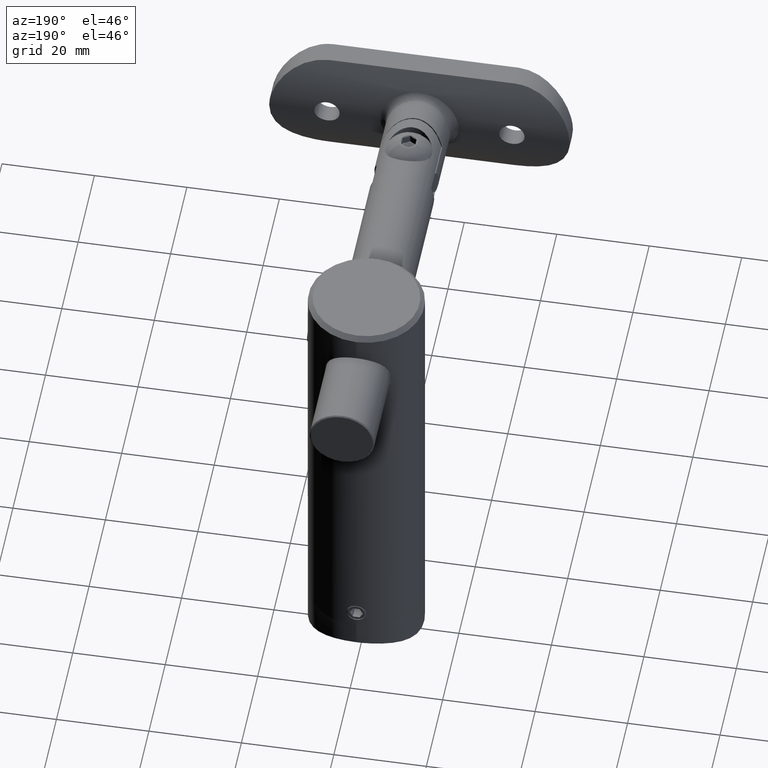
[diagram: clean part render]
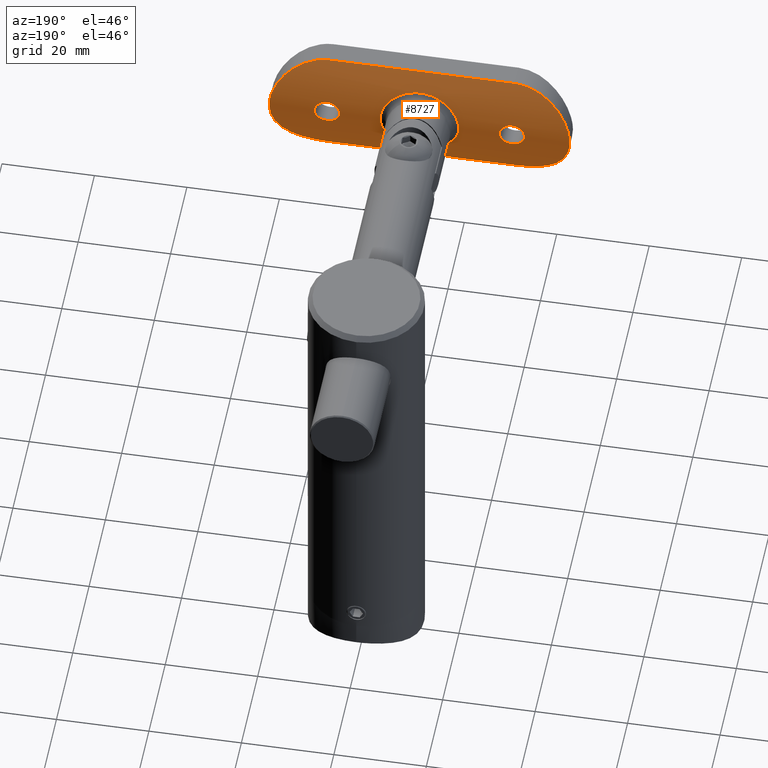
[diagram: same view with one face highlighted and labeled with its STEP entity id]
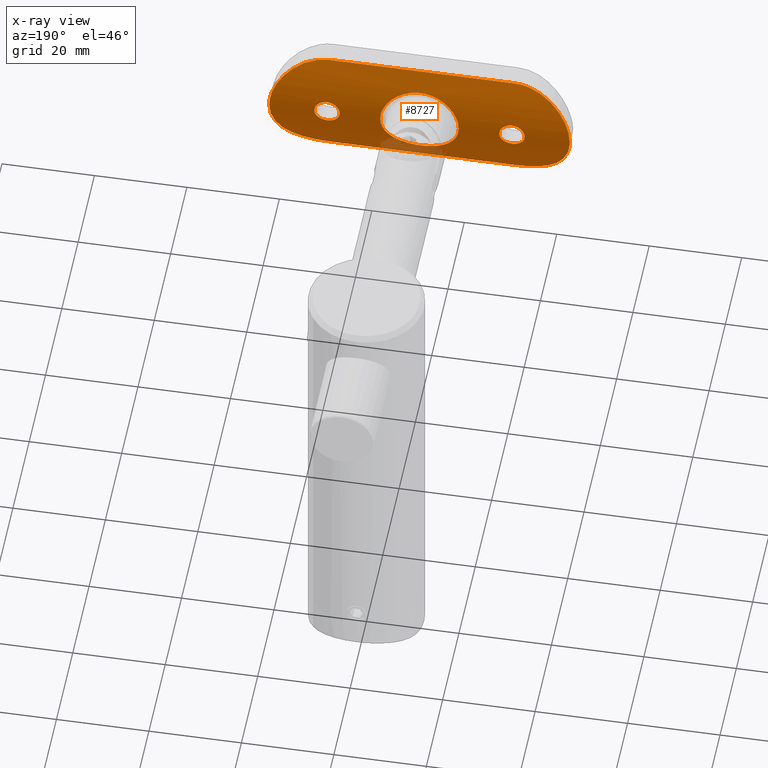
[diagram: x-ray of the same camera — body ghosted, the highlighted face saturated]
A machine part, auxiliary view. The second image highlights one B-rep face of the part: STEP entity #8727.
The next image is the same camera in x-ray: the body ghosted, the highlighted face saturated — about 3% of this face is hidden behind the body in this view.
In plain terms, the highlighted cylindrical surface (partial cylindrical patch) has radius 25.2 mm, axis along (1, -0, -0).
Its self-contained STEP definition (entity closure, byte-faithful):
#6 = CARTESIAN_POINT ( 'NONE',  ( -1.667268011024898078, 0.04195479554921971443, -32.41603179174911276 ) ) ;
#141 = CARTESIAN_POINT ( 'NONE',  ( 0.000000000000000000, 0.000000000000000000, -32.50000000000000000 ) ) ;
#160 = CARTESIAN_POINT ( 'NONE',  ( -7.317168829571952138, 1.085487654854808470, 3.495793623221181257 ) ) ;
#252 = CARTESIAN_POINT ( 'NONE',  ( 11.21365936985682232, 2.629676505859719793, 25.58293283478850455 ) ) ;
#304 = CARTESIAN_POINT ( 'NONE',  ( -3.706125848579806981, 0.2691211238552235208, -7.559892060029603122 ) ) ;
#309 = CARTESIAN_POINT ( 'NONE',  ( 2.732147407359613034, 0.1485206058410667995, 20.36086701383229425 ) ) ;
#370 = CARTESIAN_POINT ( 'NONE',  ( 7.749760127276230648, 1.221104493835866389, -2.214306671828311313 ) ) ;
#376 = CARTESIAN_POINT ( 'NONE',  ( -2.201255951346376971, 0.09498592681639476953, -8.178813999668568258 ) ) ;
#380 = CARTESIAN_POINT ( 'NONE',  ( 2.661862787343812098, 0.1409550103587203784, 20.71368127239569290 ) ) ;
#439 = CARTESIAN_POINT ( 'NONE',  ( 6.077169719930130221, 0.7408805853093711757, -5.576197931323946477 ) ) ;
#445 = CARTESIAN_POINT ( 'NONE',  ( -6.153664817988904190, 0.7601076573616449839, -5.481094006673680852 ) ) ;
#520 = CARTESIAN_POINT ( 'NONE',  ( 0.8870457649144875001, 0.01506562019405573161, 17.39075877949505156 ) ) ;
#599 = CARTESIAN_POINT ( 'NONE',  ( 2.886391478844329672, 0.1625181075792131447, 32.16925023365995884 ) ) ;
#615 = CARTESIAN_POINT ( 'NONE',  ( -12.49999999999999645, 3.318729470161013495, 32.50000000000006395 ) ) ;
#640 = FACE_OUTER_BOUND ( 'NONE', #14999, .T. ) ;
#671 = CARTESIAN_POINT ( 'NONE',  ( 1.667268011024896079, 0.04195479554921899279, 32.41603179174911276 ) ) ;
#688 = CARTESIAN_POINT ( 'NONE',  ( -1.819241778286838196, 0.06543225118884780922, 17.92997955775818397 ) ) ;
#725 = B_SPLINE_CURVE_WITH_KNOTS ( 'NONE', 3,
 ( #18077, #8356, #13281, #19497, #16454, #6737, #19709, #8433, #10013, #19781, #11709, #3629, #16247, #6523, #17870, #9805, #11425, #1661, #13078, #3326, #14686, #16316, #8226, #9867, #18351, #13554, #370, #10292, #19920, #11920, #19988, #11846, #439, #10151, #16874, #3903, #13626, #5454, #2315, #15167, #3762, #11780, #5380, #6946, #19856, #10221 ),
 .UNSPECIFIED., .F., .F.,
 ( 4, 2, 2, 2, 2, 2, 2, 2, 2, 2, 2, 2, 2, 2, 2, 2, 2, 2, 2, 2, 2, 2, 4 ),
 ( 0.02646108664101859756, 0.02728605130729167341, 0.02811101597356474927, 0.02976094530611090097, 0.03058590997238397682, 0.03141087463865705615, 0.03306080397120320785, 0.03471073330374935956, 0.03553569797002243541, 0.03636066263629551126, 0.03801059196884166297, 0.03966052130138780774, 0.04131045063393395944, 0.04213541530020703529, 0.04296037996648011115, 0.04461030929902626285, 0.04626023863157241456, 0.04708520329784549041, 0.04791016796411856626, 0.04956009729666471103, 0.05038506196293778688, 0.05121002662921086274, 0.05285995596175701444 ),
 .UNSPECIFIED. ) ;
#838 = CARTESIAN_POINT ( 'NONE',  ( 0.000000000000000000, 0.000000000000000000, -22.75000000000000000 ) ) ;
#975 = CARTESIAN_POINT ( 'NONE',  ( -2.662740999674293896, 0.1410487502677224281, 19.28976189785317175 ) ) ;
#980 = CARTESIAN_POINT ( 'NONE',  ( 2.750065284371435048, 0.1505061740554802518, -19.82148950650028851 ) ) ;
#984 = CARTESIAN_POINT ( 'NONE',  ( -11.68341459577139929, 2.871341540761538358, 24.46233648995672638 ) ) ;
#1001 = CARTESIAN_POINT ( 'NONE',  ( 0.000000000000000000, 0.000000000000000000, 17.25000000000000000 ) ) ;
#1050 = CARTESIAN_POINT ( 'NONE',  ( -2.608673552859927636, 0.1352907402618860333, -19.11130013583631282 ) ) ;
#1058 = CARTESIAN_POINT ( 'NONE',  ( -12.41600094213972305, 3.270152093552304962, 21.66693629175976099 ) ) ;
#1120 = CARTESIAN_POINT ( 'NONE',  ( 0.1795455977072645815, -1.311983449217973235E-15, -17.25000000000000355 ) ) ;
#1196 = CARTESIAN_POINT ( 'NONE',  ( -2.472126326106448335, 0.1214555880474237487, -21.21802285107709807 ) ) ;
#1201 = CARTESIAN_POINT ( 'NONE',  ( -8.266035766619465264, 1.392015620549698296, 29.38537545976074483 ) ) ;
#1270 = CARTESIAN_POINT ( 'NONE',  ( -4.070717388981838880, 0.3277296730789911461, 31.82587335543209761 ) ) ;
#1272 = CARTESIAN_POINT ( 'NONE',  ( 2.877492456091673922, 0.1615283928029649652, -32.17128298990891722 ) ) ;
#1337 = CARTESIAN_POINT ( 'NONE',  ( 7.316861939614359933, 1.083062932609342388, -30.14291416132809687 ) ) ;
#1401 = CARTESIAN_POINT ( 'NONE',  ( 4.070717388981838880, 0.3277296730789912571, -31.82587335543210472 ) ) ;
#1570 = CARTESIAN_POINT ( 'NONE',  ( 12.49999999999999645, 3.318729470161013495, 32.50000000000000000 ) ) ;
#1607 = ORIENTED_EDGE ( 'NONE', *, *, #2453, .F. ) ;
#1652 = CARTESIAN_POINT ( 'NONE',  ( -12.17172894015757656, 3.134241449003878799, -22.87552147047213680 ) ) ;
#1661 = CARTESIAN_POINT ( 'NONE',  ( 7.257040857804982537, 1.067233475373374763, 3.633718849123310335 ) ) ;
#1668 = B_SPLINE_CURVE_WITH_KNOTS ( 'NONE', 3,
 ( #19790, #16809, #10094, #11789, #520, #7094, #10371, #3713, #12006, #8445, #2043, #11929, #20066, #13497, #13429, #13363, #6957, #19866, #309, #380, #15109, #3639, #15176, #18152, #14969, #8650, #5251, #2180, #11723, #18291, #15037, #16671, #10161, #8586 ),
 .UNSPECIFIED., .F., .F.,
 ( 4, 2, 2, 2, 2, 2, 2, 2, 2, 2, 2, 2, 2, 2, 2, 2, 4 ),
 ( 0.000000000000000000, 0.0005377598190094447488, 0.001075519638018889498, 0.001613279457028334030, 0.002151039276037778995, 0.002688799095047224395, 0.003226558914056668927, 0.003764318733066114326, 0.004302078552075559725, 0.004839838371085004691, 0.005377598190094449657, 0.005915358009103894622, 0.006453117828113337853, 0.006990877647122782819, 0.007528637466132227785, 0.008066397285141673618, 0.008604157104151117716 ),
 .UNSPECIFIED. ) ;
#1733 = CARTESIAN_POINT ( 'NONE',  ( 0.000000000000000000, 0.000000000000000000, -32.50000000000000000 ) ) ;
#1744 = CARTESIAN_POINT ( 'NONE',  ( 12.50000000000000355, 3.318729470161013495, -20.00000000000000355 ) ) ;
#1814 = CARTESIAN_POINT ( 'NONE',  ( -6.396290159362872707, 0.8246844479477491996, 5.137882799507456966 ) ) ;
#1856 = DIRECTION ( 'NONE',  ( 0.000000000000000000, 0.000000000000000000, -1.000000000000000000 ) ) ;
#1893 = CARTESIAN_POINT ( 'NONE',  ( -7.965094847827831614, 1.291660766279463024, 1.151005647482821859 ) ) ;
#1896 = DIRECTION ( 'NONE',  ( 0.000000000000000000, 0.000000000000000000, -1.000000000000000000 ) ) ;
#1924 = CARTESIAN_POINT ( 'NONE',  ( -2.072542795732173371, 0.08505021053594397085, 18.18363229520508639 ) ) ;
#1962 = CARTESIAN_POINT ( 'NONE',  ( -7.036268915386495237, 1.000502949344820980, -4.120088132364932321 ) ) ;
#2037 = CARTESIAN_POINT ( 'NONE',  ( -4.817859783684664166, 0.4638549703973136595, -6.802303946434007820 ) ) ;
#2043 = CARTESIAN_POINT ( 'NONE',  ( 2.185445985078766196, 0.09474132932688443531, 18.32100581967393182 ) ) ;
#2106 = B_SPLINE_CURVE_WITH_KNOTS ( 'NONE', 3,
 ( #14809, #16371, #5091, #1652, #6655, #17720, #6582, #13063, #11274, #13124, #17858, #13198, #3317, #8011, #3246, #9795, #21051, #8144, #19485, #11340, #8213, #9653, #14672, #6, #11411, #141 ),
 .UNSPECIFIED., .F., .F.,
 ( 4, 2, 2, 2, 2, 2, 2, 2, 2, 2, 2, 2, 4 ),
 ( 0.000000000000000000, 0.002482949619020710912, 0.003724424428531060947, 0.004965899238041410549, 0.007448848857062111486, 0.008690323666572458486, 0.009931798476082803750, 0.01117327328559315248, 0.01241474809510349601, 0.01489769771412418828, 0.01613917252363453528, 0.01738064733314488228, 0.01986359695216557281 ),
 .UNSPECIFIED. ) ;
#2107 = CARTESIAN_POINT ( 'NONE',  ( -2.971103408022402359, 0.1745416200928313899, -7.900675407146808382 ) ) ;
#2180 = CARTESIAN_POINT ( 'NONE',  ( 1.379931598055809783, 0.03736833065384769642, 22.38544828646618257 ) ) ;
#2315 = CARTESIAN_POINT ( 'NONE',  ( 3.599532272273167521, 0.2534329579878114580, -7.617564970011440728 ) ) ;
#2340 = CARTESIAN_POINT ( 'NONE',  ( 9.908890582928830071, 2.028239840774359593, 27.63058222437334166 ) ) ;
#2343 = VERTEX_POINT ( 'NONE', #19232 ) ;
#2453 = EDGE_CURVE ( 'NONE', #4547, #14908, #1668, .T. ) ;
#2466 = CARTESIAN_POINT ( 'NONE',  ( -2.608503955135763608, 0.1304601278658427677, 8.058006454109772676 ) ) ;
#2563 = CARTESIAN_POINT ( 'NONE',  ( 4.468211620779538151, 0.3963447934949464457, 31.68121519372564521 ) ) ;
#2594 = B_SPLINE_CURVE_WITH_KNOTS ( 'NONE', 3,
 ( #838, #5630, #16988, #15281, #7265, #7336, #18753, #18601, #18672, #5773, #8973, #20315, #13878, #4162, #15507, #17131, #7411, #980, #12611, #12542, #15795, #14166, #10901, #2725, #9119, #5999, #17419, #9334, #15720, #18899, #17274, #19042, #1120, #2658 ),
 .UNSPECIFIED., .F., .F.,
 ( 4, 2, 2, 2, 2, 2, 2, 2, 2, 2, 2, 2, 2, 2, 2, 2, 4 ),
 ( 0.000000000000000000, 0.0005377598190094447488, 0.001075519638018889498, 0.001613279457028334030, 0.002151039276037778995, 0.002688799095047224395, 0.003226558914056668927, 0.003764318733066114326, 0.004302078552075559725, 0.004839838371085004691, 0.005377598190094449657, 0.005915358009103894622, 0.006453117828113337853, 0.006990877647122782819, 0.007528637466132227785, 0.008066397285141673618, 0.008604157104151117716 ),
 .UNSPECIFIED. ) ;
#2658 = CARTESIAN_POINT ( 'NONE',  ( 3.367778438409112056E-16, 1.187979961890814428E-17, -17.25000000000000000 ) ) ;
#2662 = CARTESIAN_POINT ( 'NONE',  ( -12.06660317602190347, 3.076343127531651067, 23.28902056191594028 ) ) ;
#2720 = CARTESIAN_POINT ( 'NONE',  ( -1.816389252517511821, 0.06522504145087958116, 22.07252458703131381 ) ) ;
#2722 = CARTESIAN_POINT ( 'NONE',  ( -0.7248454631982098606, 0.008252449000111697353, -22.67681650122943537 ) ) ;
#2725 = CARTESIAN_POINT ( 'NONE',  ( 2.186845405397447983, 0.09486715601728983038, -18.32301179898312782 ) ) ;
#2733 = CARTESIAN_POINT ( 'NONE',  ( -9.398516132625637454, 1.816575251650669465, 28.25106046154296280 ) ) ;
#2792 = CARTESIAN_POINT ( 'NONE',  ( -1.377384947430291051, 0.03722026577971185302, 22.38704495760669033 ) ) ;
#2803 = CARTESIAN_POINT ( 'NONE',  ( -1.664684350995173645, 0.04192139592814474874, 32.41608617209117682 ) ) ;
#2877 = CARTESIAN_POINT ( 'NONE',  ( 11.68341459577140107, 2.871341540761539246, -24.46233648995674059 ) ) ;
#2888 = CARTESIAN_POINT ( 'NONE',  ( -2.387772925441571825, 0.1131797228511405573, 18.62402471359489908 ) ) ;
#2900 = CARTESIAN_POINT ( 'NONE',  ( 3.367778438409112056E-16, 1.187979961890814428E-17, -17.25000000000000000 ) ) ;
#3009 = CARTESIAN_POINT ( 'NONE',  ( 12.06660317602190169, 3.076343127531650179, -23.28902056191593672 ) ) ;
#3079 = CARTESIAN_POINT ( 'NONE',  ( 11.82318603278413960, 2.945306615177193610, -24.07833795785315445 ) ) ;
#3227 = CARTESIAN_POINT ( 'NONE',  ( -2.188487952104988921, 0.09500982583481884514, 18.32510059533095870 ) ) ;
#3246 = CARTESIAN_POINT ( 'NONE',  ( -8.265288067340179623, 1.391754679466062905, -29.38603808824741392 ) ) ;
#3317 = CARTESIAN_POINT ( 'NONE',  ( -9.128318860952344238, 1.709465851586691398, -28.54893592778294575 ) ) ;
#3326 = CARTESIAN_POINT ( 'NONE',  ( 7.649349266479948284, 1.188191253278249482, 2.619757839384090570 ) ) ;
#3352 = EDGE_CURVE ( 'NONE', #14908, #4547, #13845, .T. ) ;
#3484 = CARTESIAN_POINT ( 'NONE',  ( -5.893355267663803687, 0.6980830296482610775, 5.773850959122336590 ) ) ;
#3559 = CARTESIAN_POINT ( 'NONE',  ( -7.635646868906142082, 1.184535288579818157, -2.621845462551166239 ) ) ;
#3563 = DIRECTION ( 'NONE',  ( -1.000000000000000000, 0.000000000000000000, 0.000000000000000000 ) ) ;
#3594 = CARTESIAN_POINT ( 'NONE',  ( -1.681001452974610233, 0.05567932825155114118, 17.81610398777750959 ) ) ;
#3629 = CARTESIAN_POINT ( 'NONE',  ( 5.034052585110992517, 0.5040469696071603334, 6.641681414604295064 ) ) ;
#3633 = B_SPLINE_CURVE_WITH_KNOTS ( 'NONE', 3,
 ( #10963, #6070, #17416, #14163, #7694, #20530, #10830, #11101, #17619, #7832, #19234, #4507, #17547, #1050, #9408, #15865, #14093, #4578, #19039, #15994, #6142, #1196, #14235, #12462, #19108, #11041, #17347, #17481, #6206, #2722, #7764, #18960 ),
 .UNSPECIFIED., .F., .F.,
 ( 4, 2, 2, 2, 2, 2, 2, 2, 2, 2, 2, 2, 2, 2, 2, 4 ),
 ( 0.008604157104151117716, 0.009141789900862767188, 0.009679422697574418394, 0.01021705549428606787, 0.01075468829099771734, 0.01129232108770936854, 0.01182995388442101801, 0.01236758668113266749, 0.01290521947784431869, 0.01344285227455596816, 0.01398048507126761764, 0.01451811786797926884, 0.01505575066469091831, 0.01559338346140256779, 0.01613101625811421899, 0.01720628185153751447 ),
 .UNSPECIFIED. ) ;
#3639 = CARTESIAN_POINT ( 'NONE',  ( 2.471992188797772716, 0.1214422965093789331, 21.21829803538180670 ) ) ;
#3713 = CARTESIAN_POINT ( 'NONE',  ( 1.676804932486638755, 0.05540344988688259559, 17.81296691203436211 ) ) ;
#3762 = CARTESIAN_POINT ( 'NONE',  ( 2.602262241992741476, 0.1333708965581748007, -8.045520519985769781 ) ) ;
#3849 = VERTEX_POINT ( 'NONE', #5734 ) ;
#3903 = CARTESIAN_POINT ( 'NONE',  ( 4.931500988828238619, 0.4863760364879855524, -6.710225937913272709 ) ) ;
#3981 = AXIS2_PLACEMENT_3D ( 'NONE', #16738, #1896, #3563 ) ;
#4100 = VERTEX_POINT ( 'NONE', #16174 ) ;
#4162 = CARTESIAN_POINT ( 'NONE',  ( 2.608974361319663426, 0.1353235704774093939, -20.88759748460953958 ) ) ;
#4217 = CARTESIAN_POINT ( 'NONE',  ( 7.315607594578458439, 1.082687997029814886, 30.14380031678955518 ) ) ;
#4378 = CARTESIAN_POINT ( 'NONE',  ( -11.82318603278414315, 2.945306615177194054, 24.07833795785315445 ) ) ;
#4507 = CARTESIAN_POINT ( 'NONE',  ( -2.385862764267737024, 0.1129972152947476410, -18.62071822284677225 ) ) ;
#4547 = VERTEX_POINT ( 'NONE', #1001 ) ;
#4572 = ORIENTED_EDGE ( 'NONE', *, *, #6782, .T. ) ;
#4578 = CARTESIAN_POINT ( 'NONE',  ( -2.750135411493285886, 0.1505138727913203633, -20.17967438456998508 ) ) ;
#4581 = VECTOR ( 'NONE', #8389, 1000.000000000000000 ) ;
#4583 = CARTESIAN_POINT ( 'NONE',  ( -8.562866471435935267, 1.497495063479012734, 29.11525600394244861 ) ) ;
#4585 = CARTESIAN_POINT ( 'NONE',  ( 1.664684350995175421, 0.04192139592814493609, -32.41608617209116971 ) ) ;
#4654 = CARTESIAN_POINT ( 'NONE',  ( 12.50000000000000355, 3.318729470161013495, -20.00000000000000355 ) ) ;
#4720 = CARTESIAN_POINT ( 'NONE',  ( 9.910013130227612876, 2.028718244006083804, -27.62913782769574667 ) ) ;
#5091 = CARTESIAN_POINT ( 'NONE',  ( -12.41604513394916331, 3.270190002513734040, -21.66440971848879826 ) ) ;
#5109 = CARTESIAN_POINT ( 'NONE',  ( -4.941221800016121435, 0.4852137398836552928, 6.719585704273651316 ) ) ;
#5251 = CARTESIAN_POINT ( 'NONE',  ( 1.677668902466896039, 0.05546439489903180059, 22.18632152173756467 ) ) ;
#5318 = CARTESIAN_POINT ( 'NONE',  ( -0.06108275549893127376, 7.402993054683726371E-05, -8.499753613984275091 ) ) ;
#5380 = CARTESIAN_POINT ( 'NONE',  ( 1.822559215498214202, 0.06459752279117743357, -8.282670115813656864 ) ) ;
#5454 = CARTESIAN_POINT ( 'NONE',  ( 4.064033296805980910, 0.3259038676001249635, -7.349921916746165351 ) ) ;
#5588 = EDGE_LOOP ( 'NONE', ( #7124, #13775 ) ) ;
#5612 = CARTESIAN_POINT ( 'NONE',  ( 5.594010815491769151, 0.6168360506386498798, 31.20802645236641837 ) ) ;
#5630 = CARTESIAN_POINT ( 'NONE',  ( 0.1818445906004800550, -2.382280164152719704E-19, -22.75000000000000000 ) ) ;
#5734 = CARTESIAN_POINT ( 'NONE',  ( -0.06108275549893127376, 7.402993054683726371E-05, -8.499753613984275091 ) ) ;
#5753 = CARTESIAN_POINT ( 'NONE',  ( 8.562141571826806796, 1.497233673915075114, 29.11593343704043590 ) ) ;
#5773 = CARTESIAN_POINT ( 'NONE',  ( 2.071661256399241147, 0.08497705952024417475, -21.81737590011710637 ) ) ;
#5808 = EDGE_CURVE ( 'NONE', #19724, #7475, #17512, .T. ) ;
#5845 = CARTESIAN_POINT ( 'NONE',  ( -0.1795031878923732671, -1.317162702760038330E-15, 22.75000000000000000 ) ) ;
#5993 = CARTESIAN_POINT ( 'NONE',  ( -2.470413666786928530, 0.1212862312369622497, 21.22148330684776951 ) ) ;
#5999 = CARTESIAN_POINT ( 'NONE',  ( 1.816470635807415190, 0.06522320398721241641, -17.92734796741710923 ) ) ;
#6054 = EDGE_CURVE ( 'NONE', #8929, #10809, #3633, .T. ) ;
#6070 = CARTESIAN_POINT ( 'NONE',  ( -0.1795031878923732671, -1.317162702760038330E-15, -17.25000000000000355 ) ) ;
#6142 = CARTESIAN_POINT ( 'NONE',  ( -2.609961094115734959, 0.1354253680277159866, -20.88492447427830356 ) ) ;
#6154 = CARTESIAN_POINT ( 'NONE',  ( 0.000000000000000000, 0.000000000000000000, 32.50000000000000000 ) ) ;
#6206 = CARTESIAN_POINT ( 'NONE',  ( -1.220874907014684041, 0.02904747797317014379, -22.47063278192352698 ) ) ;
#6523 = CARTESIAN_POINT ( 'NONE',  ( 6.157552135518220560, 0.7610150547235438045, 5.476895163592729432 ) ) ;
#6531 = EDGE_CURVE ( 'NONE', #7475, #19629, #2106, .T. ) ;
#6533 = CYLINDRICAL_SURFACE ( 'NONE', #3981, 25.19999999999999929 ) ;
#6566 = CARTESIAN_POINT ( 'NONE',  ( -0.3636032754976209480, -5.176312455442927428E-18, 17.25000000000000355 ) ) ;
#6582 = CARTESIAN_POINT ( 'NONE',  ( -11.68647699581961064, 2.872938612537728531, -24.45450101598523673 ) ) ;
#6655 = CARTESIAN_POINT ( 'NONE',  ( -12.07039748615804520, 3.078414103210619146, -23.27518083691609263 ) ) ;
#6673 = CARTESIAN_POINT ( 'NONE',  ( -7.778756138078518845, 1.230506860669539737, -2.097069732046012547 ) ) ;
#6737 = CARTESIAN_POINT ( 'NONE',  ( 2.212110397901192016, 0.09166198474247430616, 8.190629679048088363 ) ) ;
#6743 = CARTESIAN_POINT ( 'NONE',  ( -6.475385558901229466, 0.8444232337257849830, -5.048033015876953300 ) ) ;
#6782 = EDGE_CURVE ( 'NONE', #19629, #11812, #20349, .T. ) ;
#6808 = CARTESIAN_POINT ( 'NONE',  ( -2.717468170008854322, 0.1456066502684316144, -8.002663445529753616 ) ) ;
#6946 = CARTESIAN_POINT ( 'NONE',  ( 1.029335845911685254, 0.01545738240591786224, -8.449071739571834883 ) ) ;
#6953 = CARTESIAN_POINT ( 'NONE',  ( -5.615458157688398622, 0.6329364436400791716, -6.076716287299065655 ) ) ;
#6957 = CARTESIAN_POINT ( 'NONE',  ( 2.749934349876255180, 0.1504917997237276150, 19.81948369612383232 ) ) ;
#7017 = CARTESIAN_POINT ( 'NONE',  ( -3.593177948507827235, 0.2525513425753234675, 7.620775319185637109 ) ) ;
#7063 = EDGE_CURVE ( 'NONE', #4100, #12007, #8362, .T. ) ;
#7094 = CARTESIAN_POINT ( 'NONE',  ( 1.220040459320808290, 0.02899940046473993907, 17.52886843461236310 ) ) ;
#7124 = ORIENTED_EDGE ( 'NONE', *, *, #10001, .T. ) ;
#7265 = CARTESIAN_POINT ( 'NONE',  ( 0.8870457649144875001, 0.01506562019405573161, -22.60924122050495200 ) ) ;
#7315 = CARTESIAN_POINT ( 'NONE',  ( 7.642973678624867873, 1.184744735341883182, 29.89937630247453981 ) ) ;
#7336 = CARTESIAN_POINT ( 'NONE',  ( 1.220040459320808290, 0.02899940046473993907, -22.47113156538763690 ) ) ;
#7411 = CARTESIAN_POINT ( 'NONE',  ( 2.749934349876255180, 0.1504917997237276150, -20.18051630387616768 ) ) ;
#7475 = VERTEX_POINT ( 'NONE', #14743 ) ;
#7479 = CARTESIAN_POINT ( 'NONE',  ( -2.608673552859927636, 0.1352907402618857835, 20.88869986416369073 ) ) ;
#7490 = CARTESIAN_POINT ( 'NONE',  ( -9.910013130227612876, 2.028718244006080695, 27.62913782769574311 ) ) ;
#7581 = EDGE_CURVE ( 'NONE', #2343, #3849, #725, .T. ) ;
#7611 = CARTESIAN_POINT ( 'NONE',  ( 0.000000000000000000, 0.000000000000000000, -22.75000000000000000 ) ) ;
#7694 = CARTESIAN_POINT ( 'NONE',  ( -0.8864897003658910313, 0.01505276392571752719, -17.39064884460141869 ) ) ;
#7702 = CARTESIAN_POINT ( 'NONE',  ( -2.877492456091671258, 0.1615283928029647431, 32.17128298990891722 ) ) ;
#7764 = CARTESIAN_POINT ( 'NONE',  ( -0.3636032754976209480, -5.176312455442927428E-18, -22.75000000000000000 ) ) ;
#7832 = CARTESIAN_POINT ( 'NONE',  ( -2.070049739579363113, 0.08484369530548910299, -18.18079078823301842 ) ) ;
#8011 = CARTESIAN_POINT ( 'NONE',  ( -8.562141571826801467, 1.497233673915076224, -29.11593343704041814 ) ) ;
#8144 = CARTESIAN_POINT ( 'NONE',  ( -6.305223603466179938, 0.7914857843385423308, -30.82374023567219368 ) ) ;
#8213 = CARTESIAN_POINT ( 'NONE',  ( -4.083048678825491606, 0.3297619529015475281, -31.82160056614383237 ) ) ;
#8226 = CARTESIAN_POINT ( 'NONE',  ( 8.026005085106303838, 1.312278091070930186, 0.4815086354230371235 ) ) ;
#8298 = CARTESIAN_POINT ( 'NONE',  ( -6.833211539546231172, 0.9436823771349123202, 4.461792971427144039 ) ) ;
#8356 = CARTESIAN_POINT ( 'NONE',  ( 0.3317639245522941427, 0.0007251102182376941395, 8.497586664719651850 ) ) ;
#8362 = B_SPLINE_CURVE_WITH_KNOTS ( 'NONE', 3,
 ( #13373, #11734, #16751, #8382, #19803, #19730, #14981, #252, #10104, #13713, #2340, #12016, #18728, #5753, #15486, #7315, #4217, #17038, #5612, #2563, #16966, #8797, #599, #671, #15407, #9026 ),
 .UNSPECIFIED., .F., .F.,
 ( 4, 2, 2, 2, 2, 2, 2, 2, 2, 2, 2, 2, 4 ),
 ( 0.000000000000000000, 0.002482949619020690529, 0.003724424428531040131, 0.004965899238041389732, 0.007448848857062097609, 0.008690323666572448078, 0.009931798476082796812, 0.01117327328559314728, 0.01241474809510349428, 0.01489769771412418828, 0.01613917252363453528, 0.01738064733314488228, 0.01986359695216557281 ),
 .UNSPECIFIED. ) ;
#8382 = CARTESIAN_POINT ( 'NONE',  ( 12.17172894015757301, 3.134241449003879243, 22.87552147047213325 ) ) ;
#8389 = DIRECTION ( 'NONE',  ( 0.000000000000000000, 0.000000000000000000, -1.000000000000000000 ) ) ;
#8433 = CARTESIAN_POINT ( 'NONE',  ( 3.457114993945989312, 0.2370386249121105571, 7.675515123770517256 ) ) ;
#8445 = CARTESIAN_POINT ( 'NONE',  ( 2.071661256399241147, 0.08497705952024417475, 18.18262409988289008 ) ) ;
#8586 = CARTESIAN_POINT ( 'NONE',  ( 3.367778438409112056E-16, 1.187979961890814428E-17, 22.75000000000000000 ) ) ;
#8650 = CARTESIAN_POINT ( 'NONE',  ( 1.816470635807415190, 0.06522320398721241641, 22.07265203258289077 ) ) ;
#8727 = ADVANCED_FACE ( 'NONE', ( #15939, #640, #19719, #13145 ), #6533, .T. ) ;
#8797 = CARTESIAN_POINT ( 'NONE',  ( 3.291592242805514879, 0.2126942720887864124, 32.06594161125493514 ) ) ;
#8929 = VERTEX_POINT ( 'NONE', #2900 ) ;
#8973 = CARTESIAN_POINT ( 'NONE',  ( 2.185445985078766196, 0.09474132932688443531, -21.67899418032607173 ) ) ;
#9026 = CARTESIAN_POINT ( 'NONE',  ( 0.000000000000000000, 0.000000000000000000, 32.50000000000000000 ) ) ;
#9116 = CARTESIAN_POINT ( 'NONE',  ( -2.750135411493285886, 0.1505138727913203633, 19.82032561543001492 ) ) ;
#9119 = CARTESIAN_POINT ( 'NONE',  ( 2.073153042044685535, 0.08509194481504149532, -18.18410119137066161 ) ) ;
#9124 = CARTESIAN_POINT ( 'NONE',  ( -10.15326211524584465, 2.134602035805861053, 27.30241053714793509 ) ) ;
#9201 = CARTESIAN_POINT ( 'NONE',  ( -12.16969663537520674, 3.133117325917486706, 22.88442763853375794 ) ) ;
#9259 = CARTESIAN_POINT ( 'NONE',  ( -2.731891327557903981, 0.1484927668286139535, 20.36248250880534272 ) ) ;
#9334 = CARTESIAN_POINT ( 'NONE',  ( 1.379931598055809783, 0.03736833065384769642, -17.61455171353381743 ) ) ;
#9340 = CARTESIAN_POINT ( 'NONE',  ( -6.305381315458568281, 0.7915044484486738474, 30.82371801999915917 ) ) ;
#9342 = CARTESIAN_POINT ( 'NONE',  ( 5.592058036261040144, 0.6162643484422566376, -31.20930733956446801 ) ) ;
#9408 = CARTESIAN_POINT ( 'NONE',  ( -2.661730875569997323, 0.1409410865998054208, -19.28598841689137799 ) ) ;
#9502 = EDGE_LOOP ( 'NONE', ( #12567, #19035 ) ) ;
#9653 = CARTESIAN_POINT ( 'NONE',  ( -3.291592242805508217, 0.2126942720887846638, -32.06594161125493514 ) ) ;
#9775 = CARTESIAN_POINT ( 'NONE',  ( -0.7248454631982098606, 0.008252449000111697353, 17.32318349877056818 ) ) ;
#9795 = CARTESIAN_POINT ( 'NONE',  ( -7.642973678624868761, 1.184744735341880739, -29.89937630247455047 ) ) ;
#9801 = ORIENTED_EDGE ( 'NONE', *, *, #3352, .F. ) ;
#9805 = CARTESIAN_POINT ( 'NONE',  ( 6.893386344518966702, 0.9607351080256122389, 4.356614900635500831 ) ) ;
#9864 = VECTOR ( 'NONE', #1856, 1000.000000000000000 ) ;
#9867 = CARTESIAN_POINT ( 'NONE',  ( 8.018510805691828836, 1.309761405890365715, -0.6056675762212271330 ) ) ;
#9951 = CARTESIAN_POINT ( 'NONE',  ( -7.838795003591441990, 1.250140593943767309, -1.828862928247402264 ) ) ;
#10001 = EDGE_CURVE ( 'NONE', #3849, #2343, #16029, .T. ) ;
#10013 = CARTESIAN_POINT ( 'NONE',  ( 3.698755685074015087, 0.2718078074227761598, 7.547990148752558248 ) ) ;
#10018 = CARTESIAN_POINT ( 'NONE',  ( -8.018825383694846209, 1.309867040668136307, 0.6006896451532138803 ) ) ;
#10054 = CARTESIAN_POINT ( 'NONE',  ( -1.380705439593752137, 0.03740314638222120430, 17.61487523047949111 ) ) ;
#10094 = CARTESIAN_POINT ( 'NONE',  ( 0.3606231533980620574, 0.001966636658811664849, 17.26785897055959751 ) ) ;
#10104 = CARTESIAN_POINT ( 'NONE',  ( 10.83002449294436254, 2.440458914311941729, 26.29431497601598267 ) ) ;
#10151 = CARTESIAN_POINT ( 'NONE',  ( 5.529526221928341201, 0.6134291055515449509, -6.164569861872214673 ) ) ;
#10161 = CARTESIAN_POINT ( 'NONE',  ( 0.1795455977072645815, -1.311983449217973235E-15, 22.75000000000000000 ) ) ;
#10221 = CARTESIAN_POINT ( 'NONE',  ( -0.06108275549893127376, 7.402993054683726371E-05, -8.499753613984275091 ) ) ;
#10227 = CARTESIAN_POINT ( 'NONE',  ( -8.025752413704363875, 1.312193245451310109, -0.4858620084487314528 ) ) ;
#10292 = CARTESIAN_POINT ( 'NONE',  ( 7.599619134033795298, 1.173098394851523896, -2.736831026865289562 ) ) ;
#10363 = CARTESIAN_POINT ( 'NONE',  ( -1.023846999475748643, 0.01934687596871849727, 8.435428898004913023 ) ) ;
#10371 = CARTESIAN_POINT ( 'NONE',  ( 1.377952979709324399, 0.03725658765956019886, 17.61336343462641096 ) ) ;
#10433 = CARTESIAN_POINT ( 'NONE',  ( -2.096404911681918559, 0.08166995862604858880, 8.224845379953739766 ) ) ;
#10762 = CARTESIAN_POINT ( 'NONE',  ( -11.21245238722107018, 2.629098992545241487, 25.58474759764793660 ) ) ;
#10809 = VERTEX_POINT ( 'NONE', #7611 ) ;
#10828 = CARTESIAN_POINT ( 'NONE',  ( -0.3580001740282881539, 0.001917836237160809674, 22.73259430812108306 ) ) ;
#10830 = CARTESIAN_POINT ( 'NONE',  ( -1.377384947430292605, 0.03722026577971198485, -17.61295504239332388 ) ) ;
#10901 = CARTESIAN_POINT ( 'NONE',  ( 2.385900400082740624, 0.1130020285006530095, -18.62084753042212526 ) ) ;
#10908 = CARTESIAN_POINT ( 'NONE',  ( -0.8406273536774243604, 0.000000000000000000, 32.49999999999999289 ) ) ;
#10963 = CARTESIAN_POINT ( 'NONE',  ( 3.367778438409112056E-16, 1.187979961890814428E-17, -17.25000000000000000 ) ) ;
#10974 = CARTESIAN_POINT ( 'NONE',  ( -4.460191993434859725, 0.3948698794312859861, 31.68435314470299957 ) ) ;
#11041 = CARTESIAN_POINT ( 'NONE',  ( -1.819241778286837530, 0.06543225118884783698, -22.07002044224181958 ) ) ;
#11050 = CARTESIAN_POINT ( 'NONE',  ( 10.15326211524584643, 2.134602035805861941, -27.30241053714794930 ) ) ;
#11101 = CARTESIAN_POINT ( 'NONE',  ( -1.677983819124378995, 0.05547686773416776740, -17.81378335341628016 ) ) ;
#11111 = CARTESIAN_POINT ( 'NONE',  ( 9.398516132625637454, 1.816575251650671907, -28.25106046154296635 ) ) ;
#11274 = CARTESIAN_POINT ( 'NONE',  ( -10.83002449294435898, 2.440458914311941729, -26.29431497601598622 ) ) ;
#11340 = CARTESIAN_POINT ( 'NONE',  ( -4.468211620779531934, 0.3963447934949461127, -31.68121519372563100 ) ) ;
#11411 = CARTESIAN_POINT ( 'NONE',  ( -0.8408319059978933696, 2.428161115462323427E-17, -32.50000000000000000 ) ) ;
#11425 = CARTESIAN_POINT ( 'NONE',  ( 7.021641523310253596, 0.9976940672564091894, 4.120334444547537167 ) ) ;
#11566 = CARTESIAN_POINT ( 'NONE',  ( -12.49999999999999645, 3.318729470161013495, 20.00000000000000000 ) ) ;
#11575 = CARTESIAN_POINT ( 'NONE',  ( -7.980480439930789593, 1.296824004734356883, -1.025345728784330390 ) ) ;
#11643 = CARTESIAN_POINT ( 'NONE',  ( -4.167321294087013683, 0.3430490905464398943, -7.284853555645249834 ) ) ;
#11705 = CARTESIAN_POINT ( 'NONE',  ( 3.367778438409112056E-16, 1.187979961890814428E-17, 22.75000000000000000 ) ) ;
#11709 = CARTESIAN_POINT ( 'NONE',  ( 4.388213306847320361, 0.3840468780490716716, 7.121130143105355081 ) ) ;
#11718 = CARTESIAN_POINT ( 'NONE',  ( -7.269647212595327979, 1.070531933630991084, -3.635648357687876864 ) ) ;
#11723 = CARTESIAN_POINT ( 'NONE',  ( 1.219095633492286668, 0.02895344662255283641, 22.47159784946334327 ) ) ;
#11734 = CARTESIAN_POINT ( 'NONE',  ( 12.50000000000000355, 3.318729470161013495, 20.84092147420121677 ) ) ;
#11780 = CARTESIAN_POINT ( 'NONE',  ( 2.084272546754580180, 0.08499509583040139316, -8.213134328736778400 ) ) ;
#11789 = CARTESIAN_POINT ( 'NONE',  ( 0.7123072138261845598, 0.009455089816862395288, 17.33780877909764229 ) ) ;
#11812 = VERTEX_POINT ( 'NONE', #1744 ) ;
#11846 = CARTESIAN_POINT ( 'NONE',  ( 6.403089845704127647, 0.8252358511368956817, -5.150547054720004958 ) ) ;
#11912 = ORIENTED_EDGE ( 'NONE', *, *, #6531, .T. ) ;
#11920 = CARTESIAN_POINT ( 'NONE',  ( 7.219386327635715972, 1.055385166235057515, -3.746529570547266985 ) ) ;
#11929 = CARTESIAN_POINT ( 'NONE',  ( 2.386475810722792801, 0.1130527907451534392, 18.62162094614700081 ) ) ;
#12007 = VERTEX_POINT ( 'NONE', #14459 ) ;
#12006 = CARTESIAN_POINT ( 'NONE',  ( 1.818193974664967349, 0.06535601341085055249, 17.92905668979468814 ) ) ;
#12016 = CARTESIAN_POINT ( 'NONE',  ( 9.397641427769128697, 1.816225346274615182, 28.25204418689426689 ) ) ;
#12331 = CARTESIAN_POINT ( 'NONE',  ( 0.000000000000000000, 0.000000000000000000, -32.50000000000000000 ) ) ;
#12385 = CARTESIAN_POINT ( 'NONE',  ( -2.609961094115734959, 0.1354253680277159866, 19.11507552572169999 ) ) ;
#12460 = CARTESIAN_POINT ( 'NONE',  ( -0.8864897003658910313, 0.01505276392571752719, 22.60935115539859197 ) ) ;
#12462 = CARTESIAN_POINT ( 'NONE',  ( -2.188487952104988921, 0.09500982583482231458, -21.67489940466904486 ) ) ;
#12542 = CARTESIAN_POINT ( 'NONE',  ( 2.661862787343812098, 0.1409550103587203784, -19.28631872760430355 ) ) ;
#12567 = ORIENTED_EDGE ( 'NONE', *, *, #20346, .F. ) ;
#12611 = CARTESIAN_POINT ( 'NONE',  ( 2.732147407359613034, 0.1485206058410667995, -19.63913298616770220 ) ) ;
#12619 = CARTESIAN_POINT ( 'NONE',  ( 8.562866471435933491, 1.497495063479012956, -29.11525600394245572 ) ) ;
#12687 = CARTESIAN_POINT ( 'NONE',  ( 11.21245238722107018, 2.629098992545241931, -25.58474759764793660 ) ) ;
#12753 = CARTESIAN_POINT ( 'NONE',  ( 4.460191993434857949, 0.3948698794312856530, -31.68435314470301023 ) ) ;
#12827 = CARTESIAN_POINT ( 'NONE',  ( 9.129107160068516080, 1.709771713892833001, -28.54809784016517327 ) ) ;
#13063 = CARTESIAN_POINT ( 'NONE',  ( -11.21365936985682232, 2.629676505859719793, -25.58293283478850810 ) ) ;
#13078 = CARTESIAN_POINT ( 'NONE',  ( 7.364578021795690432, 1.099940530502118596, 3.382119123206847711 ) ) ;
#13124 = CARTESIAN_POINT ( 'NONE',  ( -10.15187181039420139, 2.133985303426428448, -27.30437927746718074 ) ) ;
#13145 = FACE_BOUND ( 'NONE', #13225, .T. ) ;
#13191 = EDGE_CURVE ( 'NONE', #12007, #19724, #17384, .T. ) ;
#13198 = CARTESIAN_POINT ( 'NONE',  ( -9.397641427769128697, 1.816225346274616292, -28.25204418689426333 ) ) ;
#13214 = CARTESIAN_POINT ( 'NONE',  ( -6.068934015391642234, 0.7411248013792564038, 5.565846480655866735 ) ) ;
#13225 = EDGE_LOOP ( 'NONE', ( #1607, #9801 ) ) ;
#13281 = CARTESIAN_POINT ( 'NONE',  ( 0.6029491347129143364, 0.005752595051740957977, 8.480887708796343460 ) ) ;
#13363 = CARTESIAN_POINT ( 'NONE',  ( 2.732461809628500049, 0.1485546420409056823, 19.64094503296044536 ) ) ;
#13373 = CARTESIAN_POINT ( 'NONE',  ( 12.50000000000000355, 3.318729470161013495, 20.00000000000000000 ) ) ;
#13423 = CARTESIAN_POINT ( 'NONE',  ( -7.762030626198773042, 1.224965038450801069, 2.215838032029148419 ) ) ;
#13429 = CARTESIAN_POINT ( 'NONE',  ( 2.661818859993606790, 0.1409500894293511108, 19.28586530190980852 ) ) ;
#13493 = CARTESIAN_POINT ( 'NONE',  ( -5.028197777310792205, 0.5058984230495775503, -6.629112423204833071 ) ) ;
#13497 = CARTESIAN_POINT ( 'NONE',  ( 2.608974361319663426, 0.1353235704774093939, 19.11240251539045687 ) ) ;
#13554 = CARTESIAN_POINT ( 'NONE',  ( 7.813422821510336291, 1.241842921743141481, -1.946974063800777532 ) ) ;
#13626 = CARTESIAN_POINT ( 'NONE',  ( 4.719140503290179645, 0.4448193468405343687, -6.879513116131953154 ) ) ;
#13713 = CARTESIAN_POINT ( 'NONE',  ( 10.15187181039420672, 2.133985303426429780, 27.30437927746718074 ) ) ;
#13775 = ORIENTED_EDGE ( 'NONE', *, *, #7581, .T. ) ;
#13845 = B_SPLINE_CURVE_WITH_KNOTS ( 'NONE', 3,
 ( #20528, #5845, #10828, #18958, #12460, #15715, #2792, #13945, #2720, #18749, #14091, #17196, #5993, #7479, #17345, #9259, #18818, #9116, #20455, #975, #12385, #14433, #2888, #3227, #1924, #688, #3594, #10054, #19465, #9775, #6566, #19539 ),
 .UNSPECIFIED., .F., .F.,
 ( 4, 2, 2, 2, 2, 2, 2, 2, 2, 2, 2, 2, 2, 2, 2, 4 ),
 ( 0.008604157104151117716, 0.009141789900862767188, 0.009679422697574418394, 0.01021705549428606787, 0.01075468829099771734, 0.01129232108770936854, 0.01182995388442101801, 0.01236758668113266749, 0.01290521947784431869, 0.01344285227455596816, 0.01398048507126761764, 0.01451811786797926884, 0.01505575066469091831, 0.01559338346140256779, 0.01613101625811421899, 0.01720628185153751447 ),
 .UNSPECIFIED. ) ;
#13846 = CARTESIAN_POINT ( 'NONE',  ( -1.296580820323806060, 0.03196009655009234007, 8.393195513344284819 ) ) ;
#13878 = CARTESIAN_POINT ( 'NONE',  ( 2.471811025445441512, 0.1214254394478188476, -21.21849364676016947 ) ) ;
#13945 = CARTESIAN_POINT ( 'NONE',  ( -1.677983819124378329, 0.05547686773416762168, 22.18621664658374115 ) ) ;
#13955 = CARTESIAN_POINT ( 'NONE',  ( 0.8406273536774238053, -0.000000000000000000, -32.49999999999999289 ) ) ;
#14091 = CARTESIAN_POINT ( 'NONE',  ( -2.186191567257209201, 0.09480897740505701832, 21.67789325702194958 ) ) ;
#14093 = CARTESIAN_POINT ( 'NONE',  ( -2.749863044303475501, 0.1504839716144722728, -19.81620417960690261 ) ) ;
#14101 = CARTESIAN_POINT ( 'NONE',  ( -12.50000000000000178, 3.318729470161014383, 20.84105733039345765 ) ) ;
#14163 = CARTESIAN_POINT ( 'NONE',  ( -0.7129347024110690434, 0.009461439531602326702, -17.33786553918137230 ) ) ;
#14166 = CARTESIAN_POINT ( 'NONE',  ( 2.471992188797772716, 0.1214422965093789331, -18.78170196461818975 ) ) ;
#14235 = CARTESIAN_POINT ( 'NONE',  ( -2.387772925441571825, 0.1131797228511440268, -21.37597528640510447 ) ) ;
#14242 = CARTESIAN_POINT ( 'NONE',  ( -7.316861939614358157, 1.083062932609342166, 30.14291416132807910 ) ) ;
#14381 = CARTESIAN_POINT ( 'NONE',  ( 12.41600094213972305, 3.270152093552303629, -21.66693629175976099 ) ) ;
#14433 = CARTESIAN_POINT ( 'NONE',  ( -2.472126326106448335, 0.1214555880474237487, 18.78197714892290193 ) ) ;
#14443 = CARTESIAN_POINT ( 'NONE',  ( 12.16969663537521029, 3.133117325917486262, -22.88442763853376150 ) ) ;
#14459 = CARTESIAN_POINT ( 'NONE',  ( 0.000000000000000000, 0.000000000000000000, 32.50000000000000000 ) ) ;
#14672 = CARTESIAN_POINT ( 'NONE',  ( -2.886391478844331004, 0.1625181075792138385, -32.16925023365995173 ) ) ;
#14686 = CARTESIAN_POINT ( 'NONE',  ( 7.790864929860529919, 1.234351979598760973, 2.098990511586286800 ) ) ;
#14743 = CARTESIAN_POINT ( 'NONE',  ( -12.49999999999999645, 3.318729470161013495, -20.00000000000000355 ) ) ;
#14809 = CARTESIAN_POINT ( 'NONE',  ( -12.49999999999999645, 3.318729470161013495, -20.00000000000000355 ) ) ;
#14827 = CARTESIAN_POINT ( 'NONE',  ( -5.342257257708777907, 0.5698848251961508016, 6.365426273057706474 ) ) ;
#14888 = CARTESIAN_POINT ( 'NONE',  ( -6.964696288678636549, 0.9812289249431112026, 4.227420665601894889 ) ) ;
#14908 = VERTEX_POINT ( 'NONE', #11705 ) ;
#14969 = CARTESIAN_POINT ( 'NONE',  ( 2.073153042044685535, 0.08509194481504149532, 21.81589880862932773 ) ) ;
#14981 = CARTESIAN_POINT ( 'NONE',  ( 11.68647699581961064, 2.872938612537728975, 24.45450101598523318 ) ) ;
#14999 = EDGE_LOOP ( 'NONE', ( #11912, #4572, #17041, #16674, #19975, #15344 ) ) ;
#15037 = CARTESIAN_POINT ( 'NONE',  ( 0.7146027208720071577, 0.009516633005673829498, 22.66161169604514924 ) ) ;
#15105 = CARTESIAN_POINT ( 'NONE',  ( -1.940354578360551141, 0.07342339228314843924, -8.252580130412866311 ) ) ;
#15109 = CARTESIAN_POINT ( 'NONE',  ( 2.609876908287981578, 0.1354165326377078371, 20.88517682305715084 ) ) ;
#15167 = CARTESIAN_POINT ( 'NONE',  ( 2.858471660253331326, 0.1614077930145037809, -7.947203351163226515 ) ) ;
#15176 = CARTESIAN_POINT ( 'NONE',  ( 2.385900400082740624, 0.1130020285006530095, 21.37915246957788185 ) ) ;
#15241 = CARTESIAN_POINT ( 'NONE',  ( 0.06061480129755653784, 7.289998910099036939E-05, 8.499757374697548329 ) ) ;
#15281 = CARTESIAN_POINT ( 'NONE',  ( 0.7123072138261845598, 0.009455089816862395288, -22.66219122090236127 ) ) ;
#15344 = ORIENTED_EDGE ( 'NONE', *, *, #5808, .T. ) ;
#15407 = CARTESIAN_POINT ( 'NONE',  ( 0.8408319059978909271, -5.251604272976641764E-17, 32.50000000000000000 ) ) ;
#15486 = CARTESIAN_POINT ( 'NONE',  ( 8.265288067340183176, 1.391754679466066458, 29.38603808824741037 ) ) ;
#15507 = CARTESIAN_POINT ( 'NONE',  ( 2.661818859993606790, 0.1409500894293511108, -20.71413469809019148 ) ) ;
#15715 = CARTESIAN_POINT ( 'NONE',  ( -1.217448732056683580, 0.02888063956006701322, 22.47232603550751762 ) ) ;
#15720 = CARTESIAN_POINT ( 'NONE',  ( 1.219095633492286668, 0.02895344662255283641, -17.52840215053666029 ) ) ;
#15726 = CARTESIAN_POINT ( 'NONE',  ( -10.83018612312571882, 2.440555194631701674, 26.29386951518686999 ) ) ;
#15795 = CARTESIAN_POINT ( 'NONE',  ( 2.609876908287981578, 0.1354165326377078371, -19.11482317694285271 ) ) ;
#15865 = CARTESIAN_POINT ( 'NONE',  ( -2.731891327557903981, 0.1484927668286139535, -19.63751749119465373 ) ) ;
#15936 = CARTESIAN_POINT ( 'NONE',  ( -9.129107160068514304, 1.709771713892832778, 28.54809784016516616 ) ) ;
#15939 = FACE_BOUND ( 'NONE', #5588, .T. ) ;
#15994 = CARTESIAN_POINT ( 'NONE',  ( -2.662740999674293896, 0.1410487502677224281, -20.71023810214682825 ) ) ;
#16029 = B_SPLINE_CURVE_WITH_KNOTS ( 'NONE', 3,
 ( #5318, #16668, #18217, #15105, #376, #6808, #2107, #304, #11643, #2037, #13493, #19929, #6953, #445, #6743, #1962, #11718, #16388, #3559, #6673, #9951, #11575, #10227, #10018, #1893, #13423, #18288, #160, #18011, #14888, #8298, #19644, #1814, #13214, #3484, #14827, #5109, #16461, #7017, #2466, #10433, #13846, #10363, #18491, #18419, #15241 ),
 .UNSPECIFIED., .F., .F.,
 ( 4, 2, 2, 2, 2, 2, 2, 2, 2, 2, 2, 2, 2, 2, 2, 2, 2, 2, 2, 2, 2, 2, 4 ),
 ( 6.108329727381766109E-05, 0.001711083506257869572, 0.002536083610749894409, 0.003361083715241919463, 0.005011083924225967837, 0.005836084028717991590, 0.006661084133210015343, 0.008311084342194064584, 0.009961084551178113825, 0.01078608465567013758, 0.01161108476016215960, 0.01326108496914620710, 0.01491108517813025461, 0.01656108538711430211, 0.01738608549160632760, 0.01821108559609835309, 0.01903608570059037858, 0.01986108580508240407, 0.02151108601406645504, 0.02316108622305050255, 0.02481108643203455005, 0.02563608653652657207, 0.02646108664101859756 ),
 .UNSPECIFIED. ) ;
#16174 = CARTESIAN_POINT ( 'NONE',  ( 12.50000000000000355, 3.318729470161013495, 20.00000000000000000 ) ) ;
#16247 = CARTESIAN_POINT ( 'NONE',  ( 5.430745039561736043, 0.5893022900131930086, 6.281031135657550557 ) ) ;
#16316 = CARTESIAN_POINT ( 'NONE',  ( 7.979500815149823012, 1.296497576001213181, 1.032576614637423784 ) ) ;
#16371 = CARTESIAN_POINT ( 'NONE',  ( -12.49999999999999822, 3.318729470161014383, -20.84092147420122032 ) ) ;
#16388 = CARTESIAN_POINT ( 'NONE',  ( -7.552601441888675993, 1.158203864928051718, -2.879063604052772618 ) ) ;
#16454 = CARTESIAN_POINT ( 'NONE',  ( 1.417232980821110155, 0.03848239367694447632, 8.371239769147880594 ) ) ;
#16461 = CARTESIAN_POINT ( 'NONE',  ( -4.069310134489402486, 0.3267805101645103183, 7.346586966710397348 ) ) ;
#16668 = CARTESIAN_POINT ( 'NONE',  ( -0.6110681906168826671, 0.001407153920719841260, -8.495316660117893548 ) ) ;
#16671 = CARTESIAN_POINT ( 'NONE',  ( 0.3619265619250442434, 0.001981854215824128441, 22.73200348333876519 ) ) ;
#16674 = ORIENTED_EDGE ( 'NONE', *, *, #7063, .T. ) ;
#16738 = CARTESIAN_POINT ( 'NONE',  ( 0.000000000000000000, 25.19999999999999929, 32.50000000000000000 ) ) ;
#16751 = CARTESIAN_POINT ( 'NONE',  ( 12.41604513394916331, 3.270190002513736260, 21.66440971848879826 ) ) ;
#16809 = CARTESIAN_POINT ( 'NONE',  ( 0.1818445906004800550, -2.382280164152719704E-19, 17.25000000000000355 ) ) ;
#16874 = CARTESIAN_POINT ( 'NONE',  ( 5.337112230350435027, 0.5707867674719863116, -6.352280609391859123 ) ) ;
#16966 = CARTESIAN_POINT ( 'NONE',  ( 4.083048678825495159, 0.3297619529015493045, 31.82160056614383237 ) ) ;
#16988 = CARTESIAN_POINT ( 'NONE',  ( 0.3606231533980620574, 0.001966636658811664849, -22.73214102944040249 ) ) ;
#17038 = CARTESIAN_POINT ( 'NONE',  ( 6.305223603466182603, 0.7914857843385423308, 30.82374023567219368 ) ) ;
#17041 = ORIENTED_EDGE ( 'NONE', *, *, #20108, .F. ) ;
#17131 = CARTESIAN_POINT ( 'NONE',  ( 2.732461809628500049, 0.1485546420409056823, -20.35905496703956175 ) ) ;
#17196 = CARTESIAN_POINT ( 'NONE',  ( -2.385862764267737912, 0.1129972152947501668, 21.37928177715322420 ) ) ;
#17274 = CARTESIAN_POINT ( 'NONE',  ( 0.7146027208720071577, 0.009516633005673829498, -17.33838830395485431 ) ) ;
#17345 = CARTESIAN_POINT ( 'NONE',  ( -2.661730875569997323, 0.1409410865998053930, 20.71401158310862911 ) ) ;
#17347 = CARTESIAN_POINT ( 'NONE',  ( -1.681001452974610011, 0.05567932825155111343, -22.18389601222249397 ) ) ;
#17384 = B_SPLINE_CURVE_WITH_KNOTS ( 'NONE', 3,
 ( #6154, #10908, #2803, #7702, #20539, #1270, #10974, #18905, #9340, #14242, #20465, #1201, #4583, #15936, #2733, #7490, #9124, #15726, #10762, #984, #4378, #2662, #9201, #1058, #14101, #17556 ),
 .UNSPECIFIED., .F., .F.,
 ( 4, 2, 2, 2, 2, 2, 2, 2, 2, 2, 2, 2, 4 ),
 ( 0.000000000000000000, 0.002483427128890320582, 0.003725140693335483692, 0.004966854257780646369, 0.007450281386670975191, 0.008691994951116138735, 0.009933708515561303146, 0.01117542208000646756, 0.01241713564445163023, 0.01490056277334196599, 0.01614227633778713908, 0.01738398990223230869, 0.01986741703112264446 ),
 .UNSPECIFIED. ) ;
#17416 = CARTESIAN_POINT ( 'NONE',  ( -0.3580001740282881539, 0.001917836237160809674, -17.26740569187890983 ) ) ;
#17419 = CARTESIAN_POINT ( 'NONE',  ( 1.677668902466896039, 0.05546439489903180059, -17.81367847826244244 ) ) ;
#17481 = CARTESIAN_POINT ( 'NONE',  ( -1.380705439593752137, 0.03740314638222121124, -22.38512476952051955 ) ) ;
#17512 = LINE ( 'NONE', #615, #4581 ) ;
#17547 = CARTESIAN_POINT ( 'NONE',  ( -2.470413666786928530, 0.1212862312369624579, -18.77851669315223404 ) ) ;
#17556 = CARTESIAN_POINT ( 'NONE',  ( -12.49999999999999645, 3.318729470161013495, 20.00000000000000000 ) ) ;
#17619 = CARTESIAN_POINT ( 'NONE',  ( -1.816389252517512265, 0.06522504145088024730, -17.92747541296869329 ) ) ;
#17690 = CARTESIAN_POINT ( 'NONE',  ( 8.266035766619461711, 1.392015620549697186, -29.38537545976075194 ) ) ;
#17720 = CARTESIAN_POINT ( 'NONE',  ( -11.82730682096132568, 2.947497412072436429, -24.06646263368969940 ) ) ;
#17858 = CARTESIAN_POINT ( 'NONE',  ( -9.908890582928830071, 2.028239840774360481, -27.63058222437334166 ) ) ;
#17870 = CARTESIAN_POINT ( 'NONE',  ( 6.477176336117188349, 0.8449360932217221398, 5.044794769243218013 ) ) ;
#18011 = CARTESIAN_POINT ( 'NONE',  ( -7.206459587259460342, 1.052064125546001039, 3.744998842492788249 ) ) ;
#18077 = CARTESIAN_POINT ( 'NONE',  ( 0.06061480129755653784, 7.289998910099036939E-05, 8.499757374697548329 ) ) ;
#18152 = CARTESIAN_POINT ( 'NONE',  ( 2.186845405397447983, 0.09486715601728983038, 21.67698820101687929 ) ) ;
#18217 = CARTESIAN_POINT ( 'NONE',  ( -1.149362102732363722, 0.02067756253722374468, -8.431692790960388706 ) ) ;
#18288 = CARTESIAN_POINT ( 'NONE',  ( -7.613268930484751174, 1.176661399992940504, 2.735539625944350739 ) ) ;
#18291 = CARTESIAN_POINT ( 'NONE',  ( 0.8860473344149224495, 0.01503029826974693756, 22.60958046709580316 ) ) ;
#18351 = CARTESIAN_POINT ( 'NONE',  ( 7.966027505263569175, 1.291970535364157513, -1.144846414395196410 ) ) ;
#18419 = CARTESIAN_POINT ( 'NONE',  ( -0.2105459697796765450, -0.0005793382571952799273, 8.501928177923192109 ) ) ;
#18469 = LINE ( 'NONE', #1570, #9864 ) ;
#18491 = CARTESIAN_POINT ( 'NONE',  ( -0.4816706497781563789, 0.003144088671219328994, 8.489569020944545130 ) ) ;
#18601 = CARTESIAN_POINT ( 'NONE',  ( 1.676804932486638755, 0.05540344988688259559, -22.18703308796564855 ) ) ;
#18672 = CARTESIAN_POINT ( 'NONE',  ( 1.818193974664967349, 0.06535601341085055249, -22.07094331020531541 ) ) ;
#18728 = CARTESIAN_POINT ( 'NONE',  ( 9.128318860952353120, 1.709465851586690732, 28.54893592778294575 ) ) ;
#18749 = CARTESIAN_POINT ( 'NONE',  ( -2.070049739579363557, 0.08484369530548850624, 21.81920921176698158 ) ) ;
#18753 = CARTESIAN_POINT ( 'NONE',  ( 1.377952979709324399, 0.03725658765956019886, -22.38663656537358193 ) ) ;
#18818 = CARTESIAN_POINT ( 'NONE',  ( -2.749863044303475501, 0.1504839716144722728, 20.18379582039309739 ) ) ;
#18899 = CARTESIAN_POINT ( 'NONE',  ( 0.8860473344149224495, 0.01503029826974693756, -17.39041953290418974 ) ) ;
#18905 = CARTESIAN_POINT ( 'NONE',  ( -5.592058036261044585, 0.6162643484422571927, 31.20930733956447867 ) ) ;
#18958 = CARTESIAN_POINT ( 'NONE',  ( -0.7129347024110690434, 0.009461439531602326702, 22.66213446081863125 ) ) ;
#18960 = CARTESIAN_POINT ( 'NONE',  ( 0.000000000000000000, 0.000000000000000000, -22.75000000000000000 ) ) ;
#19035 = ORIENTED_EDGE ( 'NONE', *, *, #6054, .F. ) ;
#19039 = CARTESIAN_POINT ( 'NONE',  ( -2.732406010615071601, 0.1485492483776507389, -20.35858776644249346 ) ) ;
#19042 = CARTESIAN_POINT ( 'NONE',  ( 0.3619265619250442434, 0.001981854215824128441, -17.26799651666123836 ) ) ;
#19108 = CARTESIAN_POINT ( 'NONE',  ( -2.072542795732173371, 0.08505021053594397085, -21.81636770479491361 ) ) ;
#19232 = CARTESIAN_POINT ( 'NONE',  ( 0.06061480129755653784, 7.289998910099036939E-05, 8.499757374697548329 ) ) ;
#19234 = CARTESIAN_POINT ( 'NONE',  ( -2.186191567257209645, 0.09480897740505452032, -18.32210674297805042 ) ) ;
#19315 = CARTESIAN_POINT ( 'NONE',  ( 3.277855041561019256, 0.2108776143917484025, -32.06970119788353202 ) ) ;
#19465 = CARTESIAN_POINT ( 'NONE',  ( -1.220874907014684041, 0.02904747797317014726, 17.52936721807646592 ) ) ;
#19485 = CARTESIAN_POINT ( 'NONE',  ( -5.594010815491763822, 0.6168360506386498798, -31.20802645236641126 ) ) ;
#19497 = CARTESIAN_POINT ( 'NONE',  ( 1.145392990432879232, 0.02458093976864179908, 8.417886707973375238 ) ) ;
#19539 = CARTESIAN_POINT ( 'NONE',  ( 0.000000000000000000, 0.000000000000000000, 17.25000000000000000 ) ) ;
#19629 = VERTEX_POINT ( 'NONE', #1733 ) ;
#19644 = CARTESIAN_POINT ( 'NONE',  ( -6.549007653830280162, 0.8654109688374721499, 4.917023675230049129 ) ) ;
#19709 = CARTESIAN_POINT ( 'NONE',  ( 2.721702950764895323, 0.1425326134147787416, 8.015957193783947332 ) ) ;
#19719 = FACE_BOUND ( 'NONE', #9502, .T. ) ;
#19724 = VERTEX_POINT ( 'NONE', #11566 ) ;
#19730 = CARTESIAN_POINT ( 'NONE',  ( 11.82730682096132568, 2.947497412072435097, 24.06646263368968519 ) ) ;
#19781 = CARTESIAN_POINT ( 'NONE',  ( 4.164404684986934946, 0.3453567068928893313, 7.270613454407807374 ) ) ;
#19790 = CARTESIAN_POINT ( 'NONE',  ( 0.000000000000000000, 0.000000000000000000, 17.25000000000000000 ) ) ;
#19803 = CARTESIAN_POINT ( 'NONE',  ( 12.07039748615804342, 3.078414103210619146, 23.27518083691608552 ) ) ;
#19856 = CARTESIAN_POINT ( 'NONE',  ( 0.4888790547683534715, -0.001259036794736627255, -8.504190377259480016 ) ) ;
#19866 = CARTESIAN_POINT ( 'NONE',  ( 2.750065284371435048, 0.1505061740554802518, 20.17851049349971504 ) ) ;
#19920 = CARTESIAN_POINT ( 'NONE',  ( 7.513060673312195625, 1.145802644366646028, -2.992992320688161012 ) ) ;
#19929 = CARTESIAN_POINT ( 'NONE',  ( -5.426409316534605232, 0.5903371110060721128, -6.266707544016421494 ) ) ;
#19975 = ORIENTED_EDGE ( 'NONE', *, *, #13191, .T. ) ;
#19988 = CARTESIAN_POINT ( 'NONE',  ( 6.977323454022846150, 0.9833601772912327066, -4.231161586339584169 ) ) ;
#20066 = CARTESIAN_POINT ( 'NONE',  ( 2.471811025445441512, 0.1214254394478188476, 18.78150635323983408 ) ) ;
#20108 = EDGE_CURVE ( 'NONE', #4100, #11812, #18469, .T. ) ;
#20315 = CARTESIAN_POINT ( 'NONE',  ( 2.386475810722792801, 0.1130527907451534392, -21.37837905385301340 ) ) ;
#20346 = EDGE_CURVE ( 'NONE', #10809, #8929, #2594, .T. ) ;
#20349 = B_SPLINE_CURVE_WITH_KNOTS ( 'NONE', 3,
 ( #12331, #13955, #4585, #1272, #19315, #1401, #12753, #9342, #20820, #1337, #20684, #17690, #12619, #12827, #11111, #4720, #11050, #20956, #12687, #2877, #3079, #3009, #14443, #14381, #20886, #4654 ),
 .UNSPECIFIED., .F., .F.,
 ( 4, 2, 2, 2, 2, 2, 2, 2, 2, 2, 2, 2, 4 ),
 ( 0.000000000000000000, 0.002483427128890330991, 0.003725140693335499738, 0.004966854257780666318, 0.007450281386671002946, 0.008691994951116169960, 0.009933708515561337840, 0.01117542208000650572, 0.01241713564445167187, 0.01490056277334199895, 0.01614227633778715643, 0.01738398990223231563, 0.01986741703112264446 ),
 .UNSPECIFIED. ) ;
#20455 = CARTESIAN_POINT ( 'NONE',  ( -2.732406010615071601, 0.1485492483776507389, 19.64141223355751009 ) ) ;
#20465 = CARTESIAN_POINT ( 'NONE',  ( -7.643915563752456066, 1.185045859685579073, 29.89864509263435366 ) ) ;
#20528 = CARTESIAN_POINT ( 'NONE',  ( 3.367778438409112056E-16, 1.187979961890814428E-17, 22.75000000000000000 ) ) ;
#20530 = CARTESIAN_POINT ( 'NONE',  ( -1.217448732056683136, 0.02888063956006700975, -17.52767396449248238 ) ) ;
#20539 = CARTESIAN_POINT ( 'NONE',  ( -3.277855041561018368, 0.2108776143917484303, 32.06970119788351781 ) ) ;
#20684 = CARTESIAN_POINT ( 'NONE',  ( 7.643915563752456954, 1.185045859685578851, -29.89864509263436787 ) ) ;
#20820 = CARTESIAN_POINT ( 'NONE',  ( 6.305381315458570057, 0.7915044484486738474, -30.82371801999915917 ) ) ;
#20886 = CARTESIAN_POINT ( 'NONE',  ( 12.50000000000000888, 3.318729470161013939, -20.84105733039346120 ) ) ;
#20956 = CARTESIAN_POINT ( 'NONE',  ( 10.83018612312571882, 2.440555194631701230, -26.29386951518686644 ) ) ;
#21051 = CARTESIAN_POINT ( 'NONE',  ( -7.315607594578458439, 1.082687997029814664, -30.14380031678956584 ) ) ;